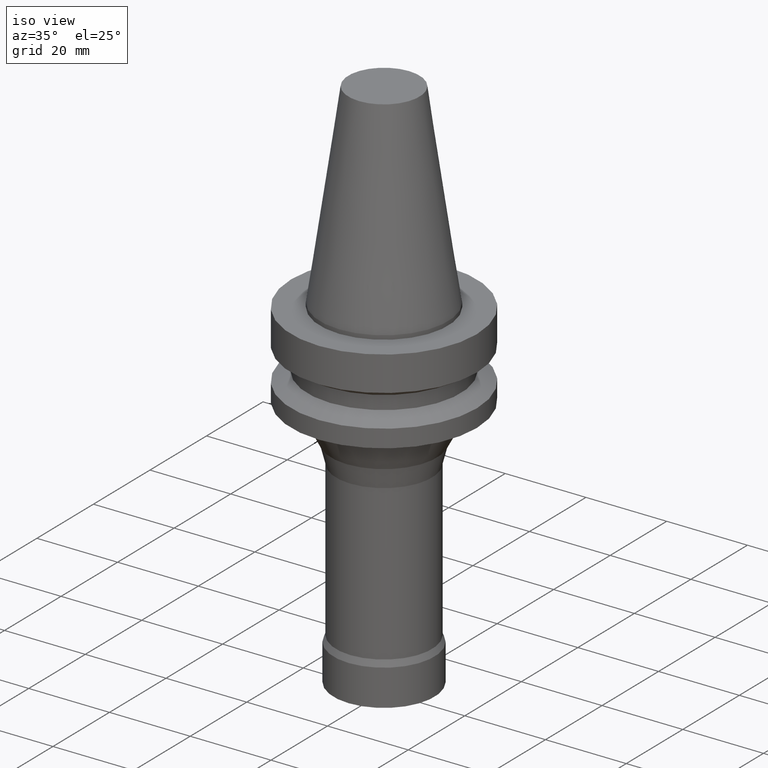
[diagram: clean part render]
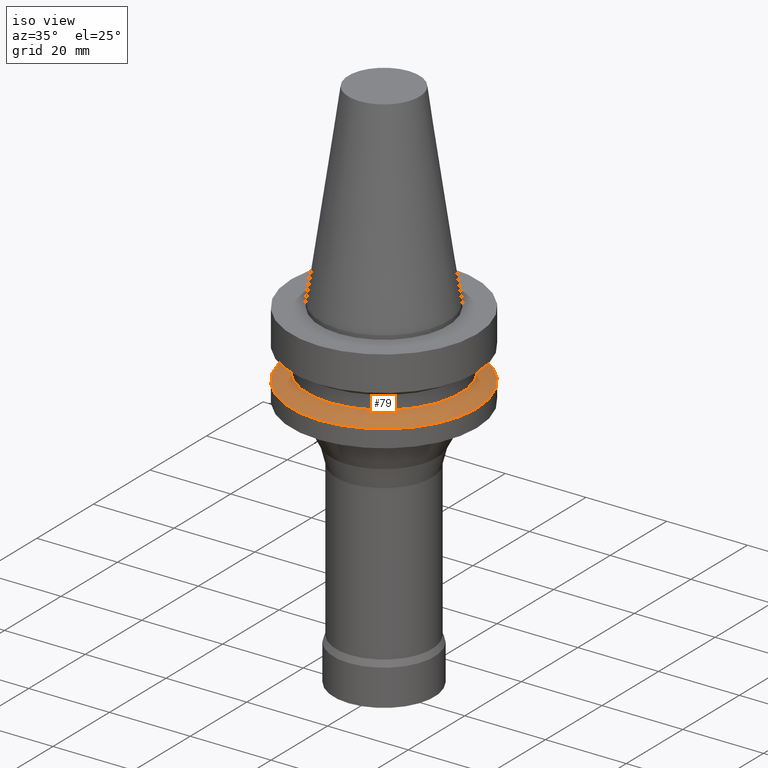
[diagram: same view with one face highlighted and labeled with its STEP entity id]
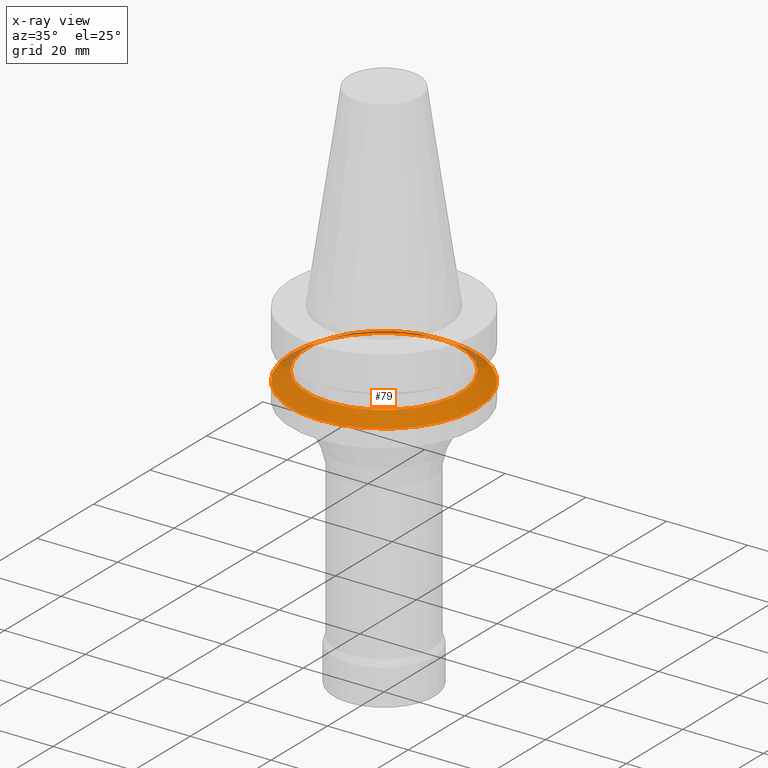
[diagram: x-ray of the same camera — body ghosted, the highlighted face saturated]
A machine part, iso view. The second image highlights one B-rep face of the part: STEP entity #79.
The next image is the same camera in x-ray: the body ghosted, the highlighted face saturated — about 10% of this face is hidden behind the body in this view.
In plain terms, the highlighted conical surface has half-angle 60 deg.
Its self-contained STEP definition (entity closure, byte-faithful):
#79=ADVANCED_FACE('',(#105,#106),#107,.T.);
#105=FACE_BOUND('',#154,.T.);
#106=FACE_BOUND('',#155,.T.);
#107=CONICAL_SURFACE('',#156,21.0,1.04719755058882);
#154=EDGE_LOOP('',(#211));
#155=EDGE_LOOP('',(#212));
#156=AXIS2_PLACEMENT_3D('',#213,#214,#215);
#211=ORIENTED_EDGE('',*,*,#279,.F.);
#212=ORIENTED_EDGE('',*,*,#278,.T.);
#213=CARTESIAN_POINT('',(1.00698416723543E-015,2.01396833447087E-015,-16.44529946));
#214=DIRECTION('',(6.12323399573677E-017,1.22464679914735E-016,-1.0));
#215=DIRECTION('',(-1.23259516440783E-032,1.0,1.22464679914735E-016));
#278=EDGE_CURVE('',#298,#298,#299,.T.);
#279=EDGE_CURVE('',#300,#300,#301,.T.);
#298=VERTEX_POINT('',#330);
#299=CIRCLE('',#331,19.0);
#300=VERTEX_POINT('',#332);
#301=CIRCLE('',#333,23.0);
#330=CARTESIAN_POINT('',(9.36279151221199E-016,19.0,-15.29059892));
#331=AXIS2_PLACEMENT_3D('',#366,#367,#368);
#332=CARTESIAN_POINT('',(1.07768918324967E-015,23.0,-17.6));
#333=AXIS2_PLACEMENT_3D('',#369,#370,#371);
#366=CARTESIAN_POINT('',(9.36279151221199E-016,1.8725583024424E-015,-15.29059892));
#367=DIRECTION('',(6.12323399573677E-017,1.22464679914735E-016,-1.0));
#368=DIRECTION('',(-1.23259516440783E-032,1.0,1.22464679914735E-016));
#369=CARTESIAN_POINT('',(1.07768918324967E-015,2.15537836649934E-015,-17.6));
#370=DIRECTION('',(6.12323399573677E-017,1.22464679914735E-016,-1.0));
#371=DIRECTION('',(-1.23259516440783E-032,1.0,1.22464679914735E-016));